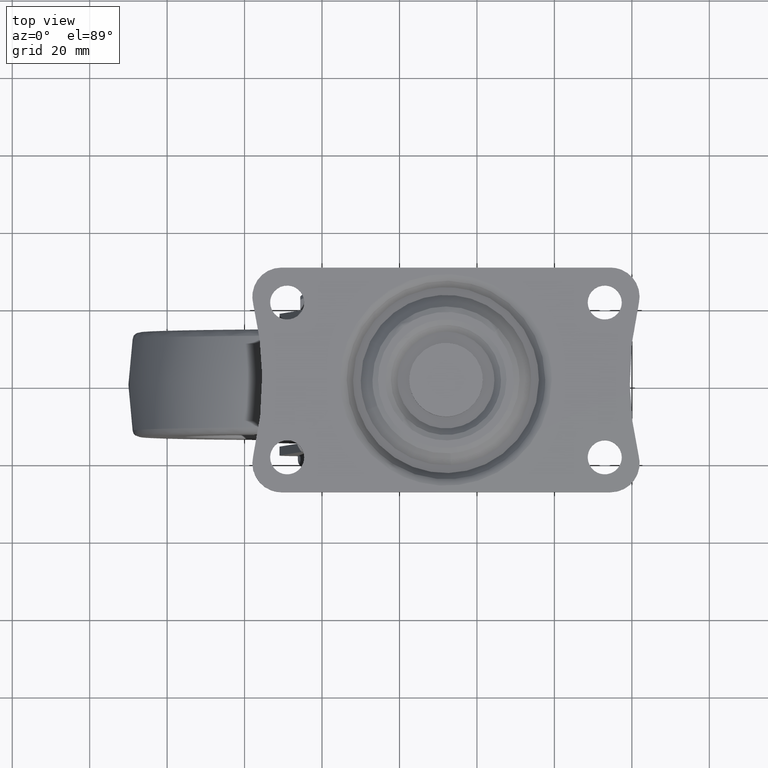
[diagram: clean part render]
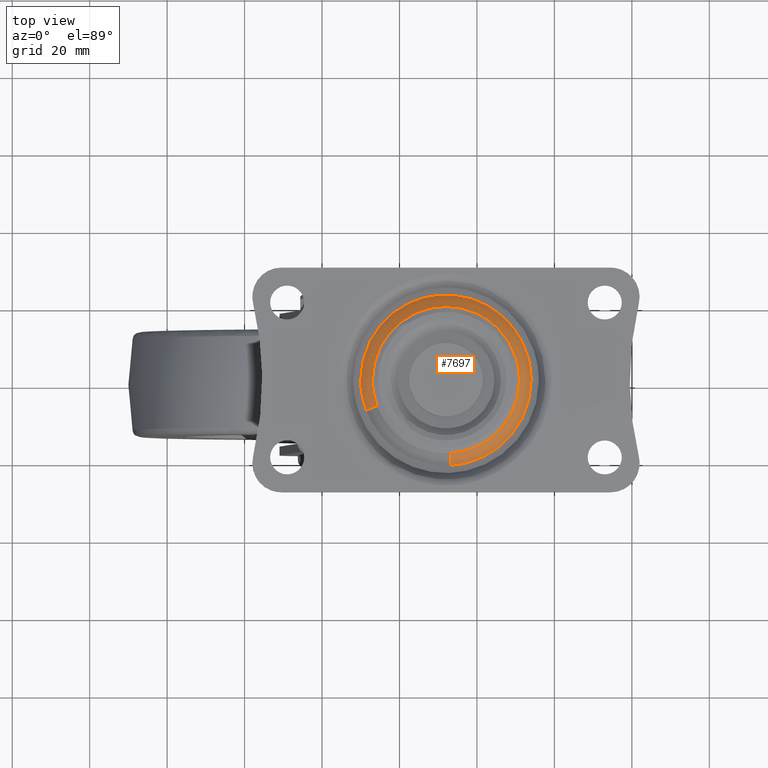
[diagram: same view with one face highlighted and labeled with its STEP entity id]
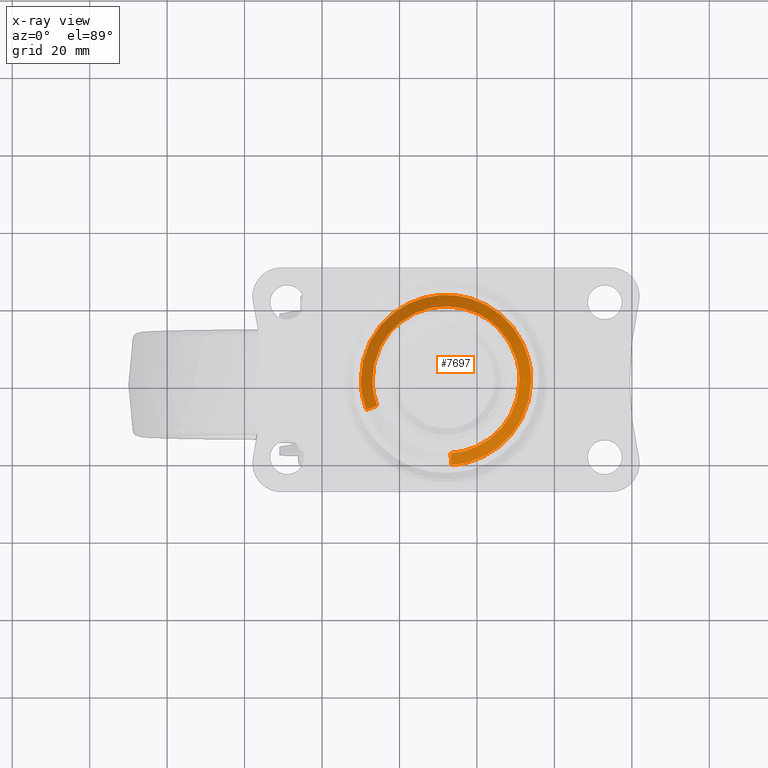
[diagram: x-ray of the same camera — body ghosted, the highlighted face saturated]
A machine part, top view. The second image highlights one B-rep face of the part: STEP entity #7697.
The next image is the same camera in x-ray: the body ghosted, the highlighted face saturated — about 0% of this face is hidden behind the body in this view.
In plain terms, the highlighted face is a freeform B-spline surface patch.
Its self-contained STEP definition (entity closure, byte-faithful):
#7531=CARTESIAN_POINT('',(14.304988138668213,-6.646292693314226,71.489773864145874));
#7532=CARTESIAN_POINT('',(13.306574707305932,-3.988128461660645,71.489773864145889));
#7533=CARTESIAN_POINT('',(13.133228387504960,-1.153941185600977,71.489773864145874));
#7534=CARTESIAN_POINT('',(11.979287201903983,17.712830426894058,71.489773864145874));
#7535=CARTESIAN_POINT('',(30.846058814399019,18.866771612495040,71.489773864145874));
#7536=CARTESIAN_POINT('',(49.712830426894058,20.020712798096010,71.489773864145874));
#7537=CARTESIAN_POINT('',(50.866771612495043,1.153941185600977,71.489773864145874));
#7538=CARTESIAN_POINT('',(52.020712798096028,-17.712830426894058,71.489773864145874));
#7539=CARTESIAN_POINT('',(33.153941185600978,-18.866771612495040,71.489773864145874));
#7540=CARTESIAN_POINT('',(11.332337595119675,-7.762828005197095,68.314352261155079));
#7541=CARTESIAN_POINT('',(10.166196995633205,-4.658108924640940,68.314352261155065));
#7542=CARTESIAN_POINT('',(9.963729585899280,-1.347796036871001,68.314352261155065));
#7543=CARTESIAN_POINT('',(8.615933549028283,20.688474377229717,68.314352261155065));
#7544=CARTESIAN_POINT('',(30.652203963129001,22.036270414100720,68.314352261155065));
#7545=CARTESIAN_POINT('',(52.688474377229731,23.384066450971723,68.314352261155065));
#7546=CARTESIAN_POINT('',(54.036270414100720,1.347796036871001,68.314352261155065));
#7547=CARTESIAN_POINT('',(55.384066450971723,-20.688474377229717,68.314352261155065));
#7548=CARTESIAN_POINT('',(33.347796036871003,-22.036270414100720,68.314352261155065));
#7556=(BOUNDED_SURFACE()B_SPLINE_SURFACE(2,1,((#7531,#7540),(#7532,#7541),(#7533,#7542),(#7534,#7543),(#7535,#7544),(#7536,#7545),(#7537,#7546),(#7538,#7547),(#7539,#7548)),.UNSPECIFIED.,.F.,.F.,.U.)B_SPLINE_SURFACE_WITH_KNOTS((3,2,2,2,3),(2,2),(0.0,7.315823140580352,43.894938843482109,80.474054546383869,117.053170249285600),(0.0,4.490724297202129),.UNSPECIFIED.)GEOMETRIC_REPRESENTATION_ITEM()RATIONAL_B_SPLINE_SURFACE(((0.906274169979695,0.906274169979695),(0.941421356237309,0.941421356237309),(1.0,1.0),(0.707106781186548,0.707106781186548),(1.0,1.0),(0.707106781186548,0.707106781186548),(1.0,1.0),(0.707106781186548,0.707106781186548),(1.0,1.0)))REPRESENTATION_ITEM('')SURFACE());
#7557=CARTESIAN_POINT('',(14.234252847415821,-6.672861053799663,71.414213562350270));
#7558=VERTEX_POINT('',#7557);
#7559=CARTESIAN_POINT('',(13.022411993827900,0.0,71.414213562372993));
#7560=VERTEX_POINT('',#7559);
#7561=CARTESIAN_POINT('',(14.234252847415828,-6.672861053799663,71.414213562350270));
#7562=CARTESIAN_POINT('',(13.022411993827907,-3.446470151899607,71.414213562372993));
#7563=CARTESIAN_POINT('',(13.022411993827900,0.0,71.414213562372993));
#7571=(BOUNDED_CURVE()B_SPLINE_CURVE(2,(#7561,#7562,#7563),.UNSPECIFIED.,.F.,.U.)B_SPLINE_CURVE_WITH_KNOTS((3,3),(0.440284170894933,0.500000000000000),.UNSPECIFIED.)CURVE()GEOMETRIC_REPRESENTATION_ITEM()RATIONAL_B_SPLINE_CURVE((0.893499554630899,0.930038554397211,1.0))REPRESENTATION_ITEM(''));
#7572=EDGE_CURVE('',#7558,#7560,#7571,.T.);
#7573=ORIENTED_EDGE('',*,*,#7572,.T.);
#7574=CARTESIAN_POINT('',(20.313725146241989,14.952585949363881,71.414213562407710));
#7575=VERTEX_POINT('',#7574);
#7576=CARTESIAN_POINT('',(13.022411993827900,0.0,71.414213562372993));
#7577=CARTESIAN_POINT('',(13.022411993827907,9.254020508452719,71.414213562372993));
#7578=CARTESIAN_POINT('',(20.313725146241989,14.952585949363881,71.414213562407710));
#7586=(BOUNDED_CURVE()B_SPLINE_CURVE(2,(#7576,#7577,#7578),.UNSPECIFIED.,.F.,.U.)B_SPLINE_CURVE_WITH_KNOTS((3,3),(0.500000000000000,0.643432082114929),.UNSPECIFIED.)CURVE()GEOMETRIC_REPRESENTATION_ITEM()RATIONAL_B_SPLINE_CURVE((1.0,0.831958863152972,0.856737647417376))REPRESENTATION_ITEM(''));
#7587=EDGE_CURVE('',#7560,#7575,#7586,.T.);
#7588=ORIENTED_EDGE('',*,*,#7587,.T.);
#7589=CARTESIAN_POINT('',(45.503230932429013,13.334601638074499,71.414213564253174));
#7590=VERTEX_POINT('',#7589);
#7591=CARTESIAN_POINT('',(20.313725146241989,14.952585949363881,71.414213562407710));
#7592=CARTESIAN_POINT('',(25.463714338971077,18.977588006172109,71.414213562372993));
#7593=CARTESIAN_POINT('',(32.0,18.977588006172098,71.414213562372993));
#7594=CARTESIAN_POINT('',(39.930714576264457,18.977588006172105,71.414213562372993));
#7595=CARTESIAN_POINT('',(45.503230932429013,13.334601638074496,71.414213564253174));
#7603=(BOUNDED_CURVE()B_SPLINE_CURVE(2,(#7591,#7592,#7593,#7594,#7595),.UNSPECIFIED.,.F.,.U.)B_SPLINE_CURVE_WITH_KNOTS((3,2,3),(0.643432082114929,0.750000000000000,0.875948062567888),.UNSPECIFIED.)CURVE()GEOMETRIC_REPRESENTATION_ITEM()RATIONAL_B_SPLINE_CURVE((0.856737647417376,0.875147918033576,1.0,0.852442666204693,0.853561814883002))REPRESENTATION_ITEM(''));
#7604=EDGE_CURVE('',#7575,#7590,#7603,.T.);
#7605=ORIENTED_EDGE('',*,*,#7604,.T.);
#7606=CARTESIAN_POINT('',(50.977588006172098,0.0,71.414213562372993));
#7607=VERTEX_POINT('',#7606);
#7608=CARTESIAN_POINT('',(45.503230932429013,13.334601638074496,71.414213564253174));
#7609=CARTESIAN_POINT('',(50.977588006172098,7.791015879461438,71.414213562372979));
#7610=CARTESIAN_POINT('',(50.977588006172098,0.0,71.414213562372993));
#7618=(BOUNDED_CURVE()B_SPLINE_CURVE(2,(#7608,#7609,#7610),.UNSPECIFIED.,.F.,.U.)B_SPLINE_CURVE_WITH_KNOTS((3,3),(0.875948062567888,1.0),.UNSPECIFIED.)CURVE()GEOMETRIC_REPRESENTATION_ITEM()RATIONAL_B_SPLINE_CURVE((0.853561814883002,0.854664114981855,1.0))REPRESENTATION_ITEM(''));
#7619=EDGE_CURVE('',#7590,#7607,#7618,.T.);
#7620=ORIENTED_EDGE('',*,*,#7619,.T.);
#7621=CARTESIAN_POINT('',(33.158554031813097,-18.942190979083801,71.414213562354348));
#7622=VERTEX_POINT('',#7621);
#7623=CARTESIAN_POINT('',(50.977588006172098,0.0,71.414213562372993));
#7624=CARTESIAN_POINT('',(50.977588006172105,-17.852332172376705,71.414213562372993));
#7625=CARTESIAN_POINT('',(33.158554031813104,-18.942190979083801,71.414213562354348));
#7633=(BOUNDED_CURVE()B_SPLINE_CURVE(2,(#7623,#7624,#7625),.UNSPECIFIED.,.F.,.U.)B_SPLINE_CURVE_WITH_KNOTS((3,3),(0.0,0.239332962239401),.UNSPECIFIED.)CURVE()GEOMETRIC_REPRESENTATION_ITEM()RATIONAL_B_SPLINE_CURVE((1.0,0.719603993286174,0.976072041667699))REPRESENTATION_ITEM(''));
#7634=EDGE_CURVE('',#7607,#7622,#7633,.T.);
#7635=ORIENTED_EDGE('',*,*,#7634,.T.);
#7636=CARTESIAN_POINT('',(33.343067870041722,-21.958965565300559,68.391801568508868));
#7637=VERTEX_POINT('',#7636);
#7638=CARTESIAN_POINT('',(33.158554031813097,-18.942190979083801,71.414213562354348));
#7639=CARTESIAN_POINT('',(33.343067870041722,-21.958965565300559,68.391801568508868));
#7640=QUASI_UNIFORM_CURVE('',1,(#7638,#7639),.UNSPECIFIED.,.F.,.U.);
#7641=EDGE_CURVE('',#7622,#7637,#7640,.T.);
#7642=ORIENTED_EDGE('',*,*,#7641,.T.);
#7643=CARTESIAN_POINT('',(54.0,0.0,68.391801568545105));
#7644=VERTEX_POINT('',#7643);
#7645=CARTESIAN_POINT('',(54.0,0.0,68.391801568545105));
#7646=CARTESIAN_POINT('',(54.000000000000007,-20.695533471410453,68.391801568545105));
#7647=CARTESIAN_POINT('',(33.343067870041708,-21.958965565300556,68.391801568508868));
#7655=(BOUNDED_CURVE()B_SPLINE_CURVE(2,(#7645,#7646,#7647),.UNSPECIFIED.,.F.,.U.)B_SPLINE_CURVE_WITH_KNOTS((3,3),(0.500000000000000,0.739332962237684),.UNSPECIFIED.)CURVE()GEOMETRIC_REPRESENTATION_ITEM()RATIONAL_B_SPLINE_CURVE((1.0,0.719603993288185,0.976072041664019))REPRESENTATION_ITEM(''));
#7656=EDGE_CURVE('',#7644,#7637,#7655,.T.);
#7657=ORIENTED_EDGE('',*,*,#7656,.F.);
#7658=CARTESIAN_POINT('',(10.0,0.0,68.391801568545105));
#7659=VERTEX_POINT('',#7658);
#7660=CARTESIAN_POINT('',(10.0,0.0,68.391801568545105));
#7661=CARTESIAN_POINT('',(10.000000000000002,22.000000000000007,68.391801568545105));
#7662=CARTESIAN_POINT('',(32.0,22.0,68.391801568545105));
#7663=CARTESIAN_POINT('',(54.0,22.000000000000007,68.391801568545105));
#7664=CARTESIAN_POINT('',(54.0,0.0,68.391801568545105));
#7672=(BOUNDED_CURVE()B_SPLINE_CURVE(2,(#7660,#7661,#7662,#7663,#7664),.UNSPECIFIED.,.F.,.U.)B_SPLINE_CURVE_WITH_KNOTS((3,2,3),(0.0,0.250000000000000,0.500000000000000),.UNSPECIFIED.)CURVE()GEOMETRIC_REPRESENTATION_ITEM()RATIONAL_B_SPLINE_CURVE((1.0,0.707106781186548,1.0,0.707106781186548,1.0))REPRESENTATION_ITEM(''));
#7673=EDGE_CURVE('',#7659,#7644,#7672,.T.);
#7674=ORIENTED_EDGE('',*,*,#7673,.F.);
#7675=CARTESIAN_POINT('',(11.404841266957700,-7.735595436777201,68.391801568529246));
#7676=VERTEX_POINT('',#7675);
#7677=CARTESIAN_POINT('',(11.404841266957703,-7.735595436777201,68.391801568529246));
#7678=CARTESIAN_POINT('',(10.000000000000002,-3.995362493642023,68.391801568545105));
#7679=CARTESIAN_POINT('',(10.0,0.0,68.391801568545105));
#7687=(BOUNDED_CURVE()B_SPLINE_CURVE(2,(#7677,#7678,#7679),.UNSPECIFIED.,.F.,.U.)B_SPLINE_CURVE_WITH_KNOTS((3,3),(0.940284170896501,1.0),.UNSPECIFIED.)CURVE()GEOMETRIC_REPRESENTATION_ITEM()RATIONAL_B_SPLINE_CURVE((0.893499554632818,0.930038554399048,1.0))REPRESENTATION_ITEM(''));
#7688=EDGE_CURVE('',#7676,#7659,#7687,.T.);
#7689=ORIENTED_EDGE('',*,*,#7688,.F.);
#7690=CARTESIAN_POINT('',(14.234252847415821,-6.672861053799663,71.414213562350270));
#7691=CARTESIAN_POINT('',(11.404841266957700,-7.735595436777201,68.391801568529246));
#7692=QUASI_UNIFORM_CURVE('',1,(#7690,#7691),.UNSPECIFIED.,.F.,.U.);
#7693=EDGE_CURVE('',#7558,#7676,#7692,.T.);
#7694=ORIENTED_EDGE('',*,*,#7693,.F.);
#7695=EDGE_LOOP('',(#7573,#7588,#7605,#7620,#7635,#7642,#7657,#7674,#7689,#7694));
#7696=FACE_OUTER_BOUND('',#7695,.T.);
#7697=ADVANCED_FACE('',(#7696),#7556,.T.);